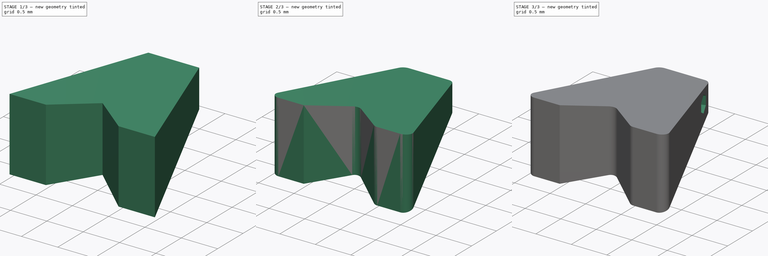
[diagram: build sequence overview — one tinted view per stage of 3, left to right]
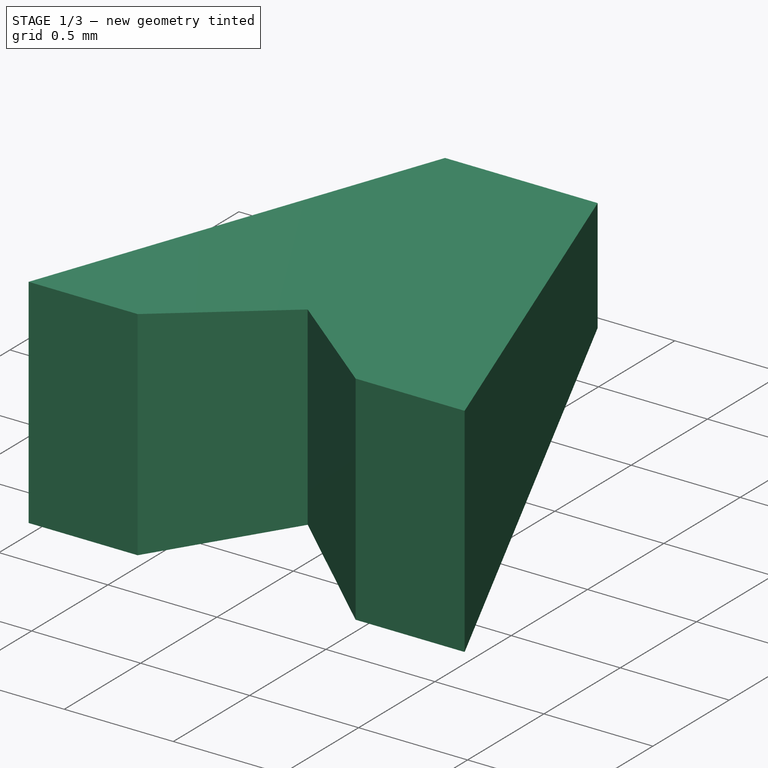
[diagram: stage 1 of 3 — iso view after this stage's code; geometry added in this stage tinted green]
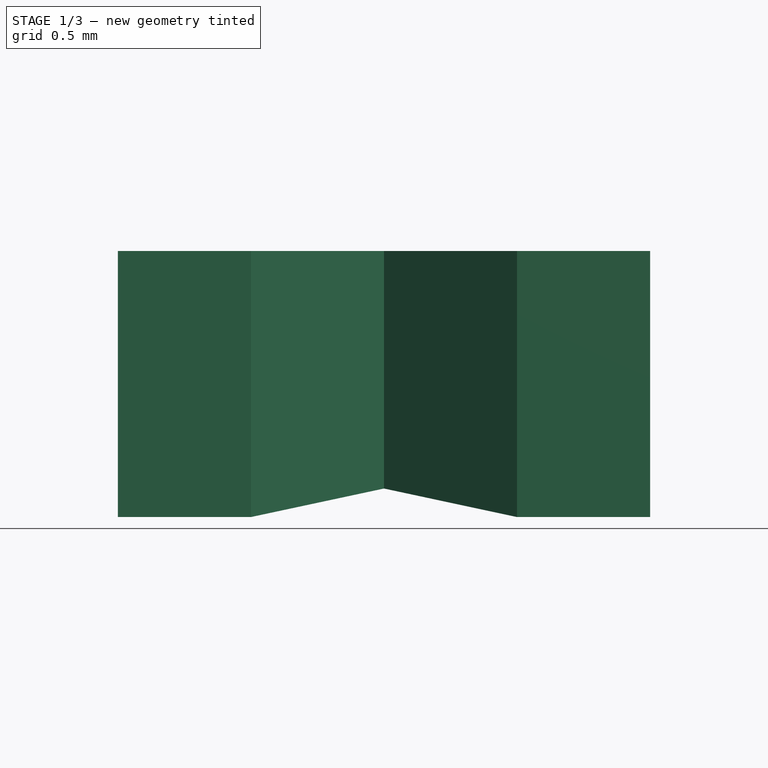
[diagram: stage 1 of 3 — front view after this stage's code; geometry added in this stage tinted green]
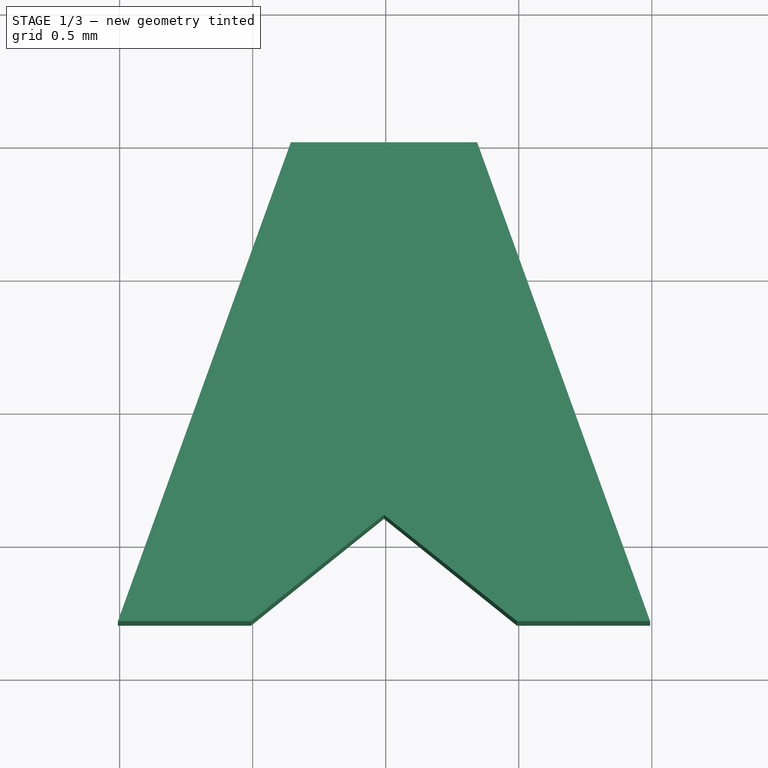
[diagram: stage 1 of 3 — top view after this stage's code; geometry added in this stage tinted green]
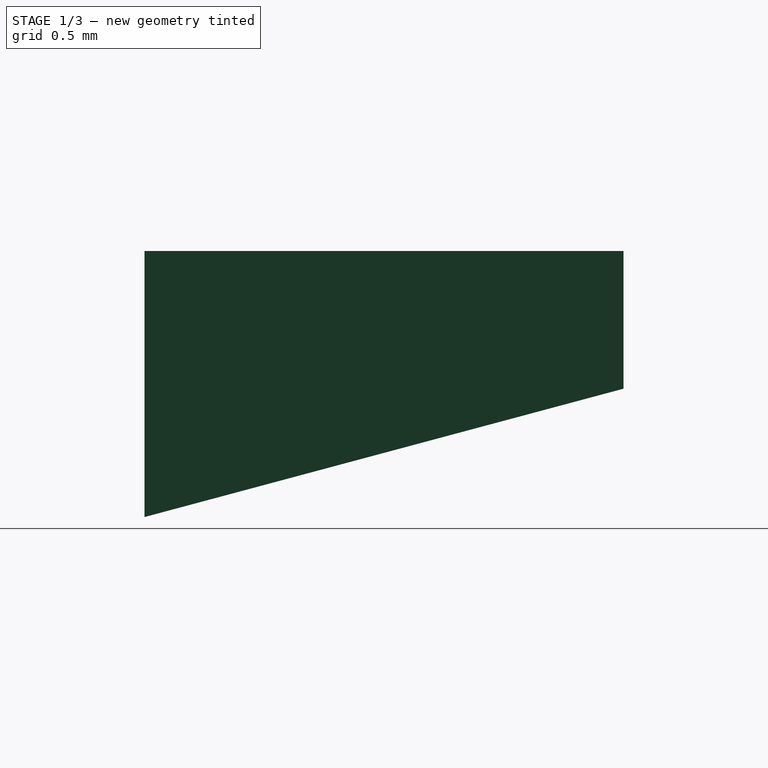
[diagram: stage 1 of 3 — right view after this stage's code; geometry added in this stage tinted green]
FCSTD DOCUMENT  (FreeCAD 0.15R4671 (Git))
Label: body_kid
License: All rights reserved
LicenseURL: http://en.wikipedia.org/wiki/All_rights_reserved
objects: Sketcher::SketchObject×4, PartDesign::Pocket×3, PartDesign::Draft×2, PartDesign::Pad×1, Part::Fillet×1
note: 15 computed .brp shape members not serialized (recipe doc carries the construction recipe); baked Part::Feature solids carry a one-line shape summary decoded from their .brp

FEATURE [Sketcher::SketchObject] Sketch001  label="body_sketch"
  Placement = pos=(-0.00651598,2.00404,0.675175) rot=(0,0,1;0rad)
  sketch-geometry (11):
    g0: GeomPoint [constr] X=0 Y=0 Z=0
    g1: GeomPoint [constr] X=-0.35 Y=0 Z=0
    g2: GeomPoint [constr] X=0.35 Y=0 Z=0
    g3: LineSegment StartX=-0.35 StartY=0 StartZ=0 EndX=-1 EndY=-1.8 EndZ=0
    g4: LineSegment StartX=-1 StartY=-1.8 StartZ=0 EndX=-0.5 EndY=-1.8 EndZ=0
    g5: GeomPoint [constr] X=0.5 Y=-1.8 Z=0
    g6: LineSegment StartX=0.5 StartY=-1.8 StartZ=0 EndX=1 EndY=-1.8 EndZ=0
    g7: LineSegment StartX=0.35 StartY=0 StartZ=0 EndX=1 EndY=-1.8 EndZ=0
    g8: LineSegment StartX=-0.5 StartY=-1.8 StartZ=0 EndX=0 EndY=-1.4 EndZ=0
    g9: LineSegment StartX=0.5 StartY=-1.8 StartZ=0 EndX=0 EndY=-1.4 EndZ=0
    g10: LineSegment StartX=-0.35 StartY=0 StartZ=0 EndX=0.35 EndY=0 EndZ=0
  constraints (25):
    c: DistanceX(g0) = 0
    c: DistanceY(g0) = 0
    c: Symmetric(g2,g1,g-2)
    c: Coincident(g3,g1)
    c: Coincident(g4,g3)
    c: Horizontal(g4)
    c: PointOnObject(g5,g4)
    c: Symmetric(g5,g4,g-2)
    c: Coincident(g6,g5)
    c: Horizontal(g6)
    c: Equal(g4,g6)
    c: Coincident(g7,g2)
    c: Coincident(g7,g6)
    c: Distance(g1,g2) = 0.7
    c: Distance(g2,g6) = 1.8
    c: Distance(g4) = 0.5
    c: Distance(g4,g5) = 1
    c: Coincident(g8,g4)
    c: PointOnObject(g8,g-2)
    c: Coincident(g9,g5)
    c: Coincident(g9,g8)
    c: DistanceY(g1) = 0
    c: Coincident(g10,g1)
    c: Coincident(g10,g2)
    c: Distance(g8,g10) = 1.4
FEATURE [PartDesign::Pad] Pad  label="body"
  Length = 1
  Length2 = 100
  Placement = pos=(-0.00651598,2.00404,0.675175) rot=(0,0,1;0rad)
  Reversed = true
  Sketch = -> Sketch001
  Type = 0
FEATURE [PartDesign::Draft] Draft  label="angle_back"
  Angle = 15
  Base = -> Pad [Face9]
  NeutralPlane = -> Pad [Face2]
  Placement = pos=(-0.00651598,2.00404,0.675175) rot=(0,0,1;0rad)
  Reversed = true
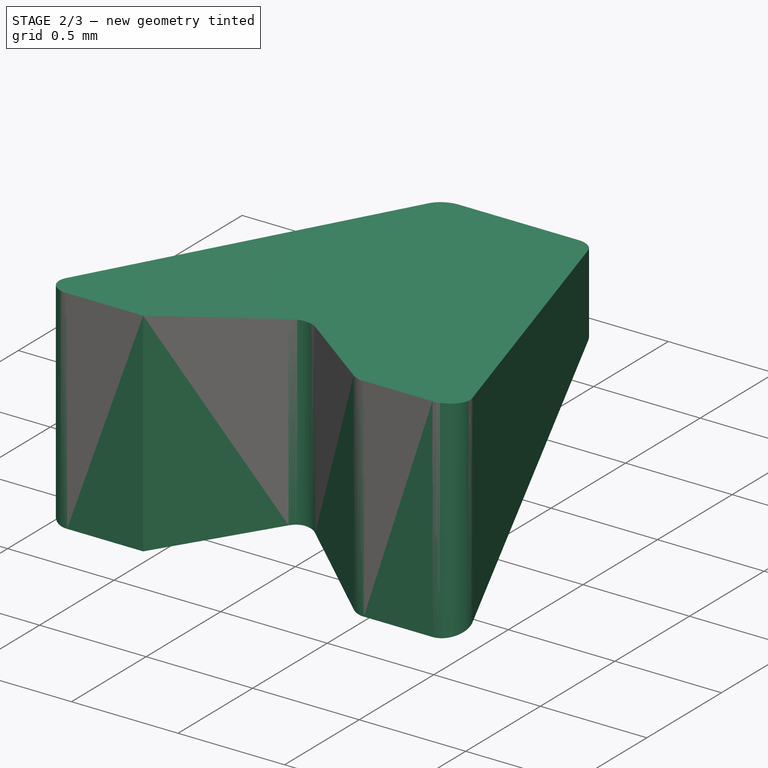
[diagram: stage 2 of 3 — iso view after this stage's code; geometry added in this stage tinted green]
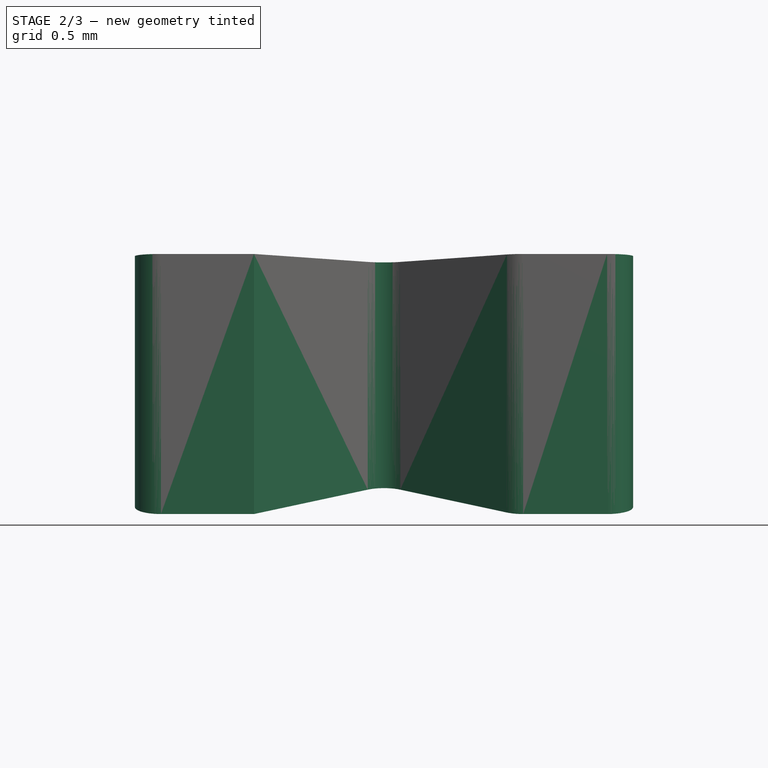
[diagram: stage 2 of 3 — front view after this stage's code; geometry added in this stage tinted green]
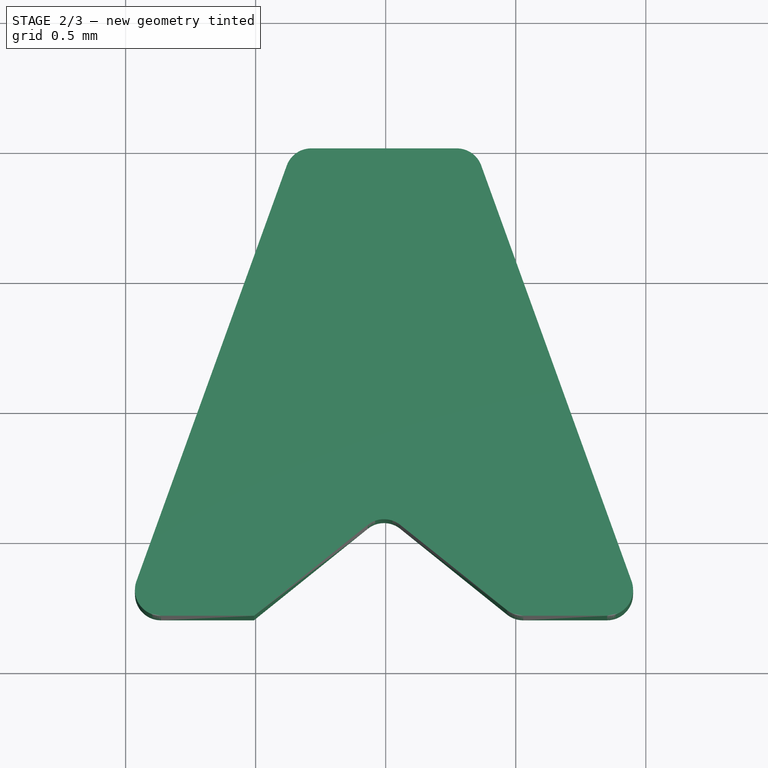
[diagram: stage 2 of 3 — top view after this stage's code; geometry added in this stage tinted green]
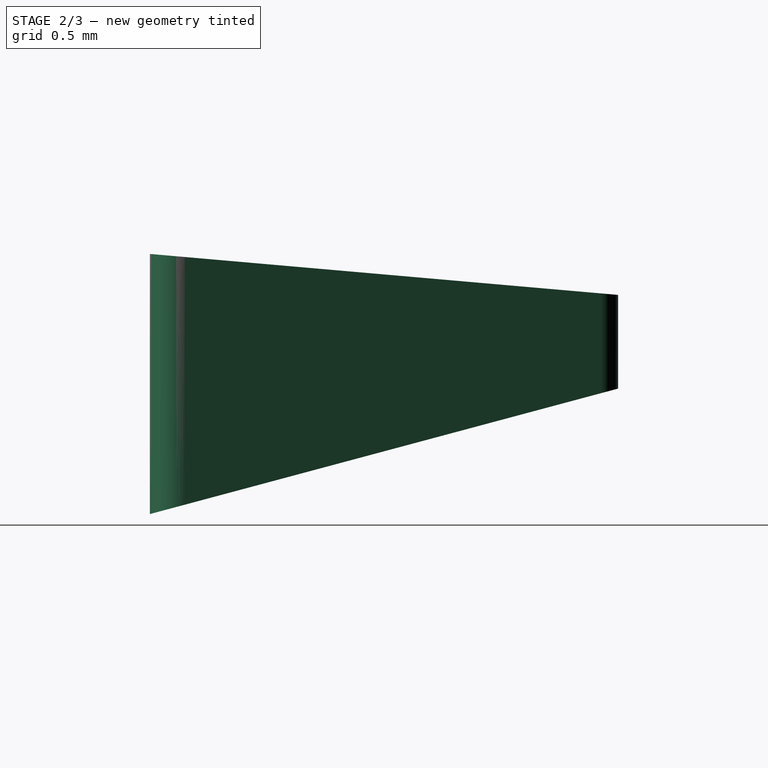
[diagram: stage 2 of 3 — right view after this stage's code; geometry added in this stage tinted green]
FEATURE [PartDesign::Draft] Draft001  label="angle_front"
  Angle = 5
  Base = -> Draft [Face8]
  NeutralPlane = -> Draft [Face2]
  Placement = pos=(-0.00651598,2.00404,0.675175) rot=(0,0,1;0rad)
  Reversed = true
FEATURE [Part::Fillet] Fillet002  label="BodyRoundKid"
  Base = -> Draft001
  Edges = 6 edges r=0.1: [Edge1,Edge2,Edge8,Edge11,Edge14,Edge17]
  Placement = pos=(0,0,-0.5) rot=(0,0,1;0rad)
FEATURE [Sketcher::SketchObject] Sketch  label="join"
  Placement = pos=(0,2.00404,-0.5) rot=(0,0.707107,0.707107;3.14159rad)
  Support = -> Fillet002 [Face6]
  sketch-geometry (7):
    g0: LineSegment StartX=0 StartY=0.47 StartZ=0 EndX=-0.103923 EndY=0.41 EndZ=0
    g1: LineSegment StartX=-0.103923 StartY=0.41 StartZ=0 EndX=-0.103923 EndY=0.29 EndZ=0
    g2: LineSegment StartX=-0.103923 StartY=0.29 StartZ=0 EndX=0 EndY=0.23 EndZ=0
    g3: LineSegment StartX=0 StartY=0.23 StartZ=0 EndX=0.103923 EndY=0.29 EndZ=0
    g4: LineSegment StartX=0.103923 StartY=0.29 StartZ=0 EndX=0.103923 EndY=0.41 EndZ=0
    g5: LineSegment StartX=0.103923 StartY=0.41 StartZ=0 EndX=0 EndY=0.47 EndZ=0
    g6: Circle [constr] CenterX=0 CenterY=0.35 CenterZ=0 NormalX=0 NormalY=0 NormalZ=1 Radius=0.12
  constraints (18):
    c: Coincident(g0,g1)
    c: Coincident(g1,g2)
    c: Coincident(g2,g3)
    c: Coincident(g3,g4)
    c: Coincident(g4,g5)
    c: Coincident(g5,g0)
    c: Equal(g0, g1-g5) x5
    c: PointOnObject(g0,g6)
    c: PointOnObject(g1,g6)
    c: PointOnObject(g2,g6)
    c: PointOnObject(g3,g6)
    c: PointOnObject(g4,g6)
    c: PointOnObject(g5,g6)
    c: Coincident(g3,g-1)
    c: Vertical(g4)
    c: Radius(g6) = 0.12
    c: DistanceY(g-1,g6) = 0.35
    c: DistanceX(g-2,g6) = 0
FEATURE [PartDesign::Pocket] Pocket
  Length = 0.2
  Placement = pos=(0,0,-0.5) rot=(0,0,1;0rad)
  Sketch = -> Sketch
  Type = 0
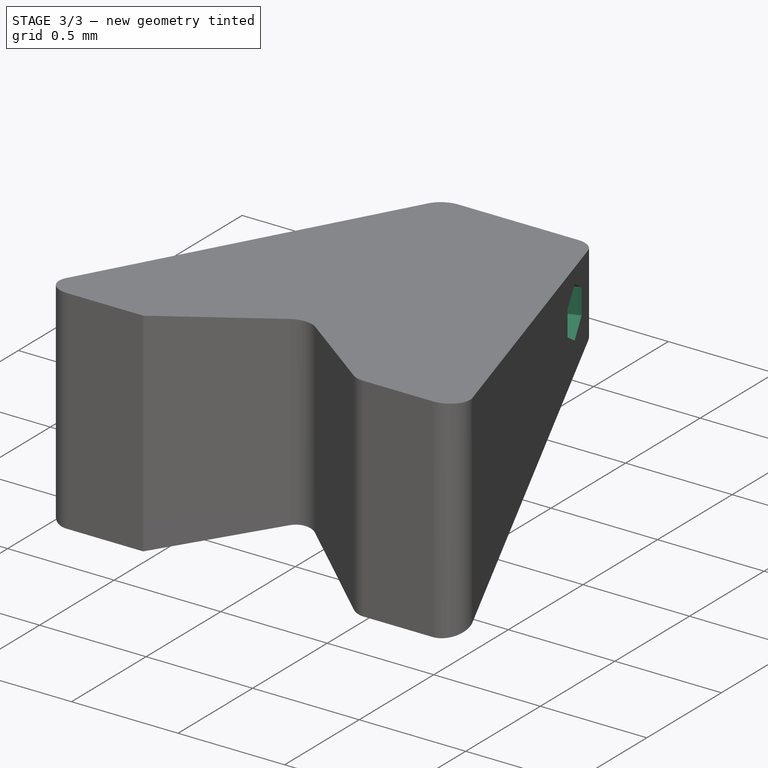
[diagram: stage 3 of 3 — iso view after this stage's code; geometry added in this stage tinted green]
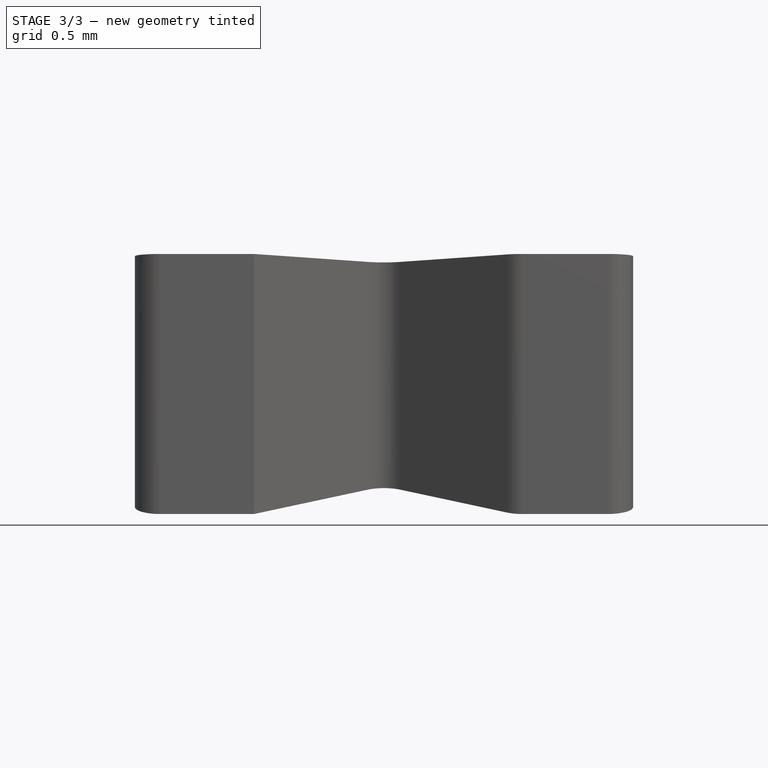
[diagram: stage 3 of 3 — front view after this stage's code; geometry added in this stage tinted green]
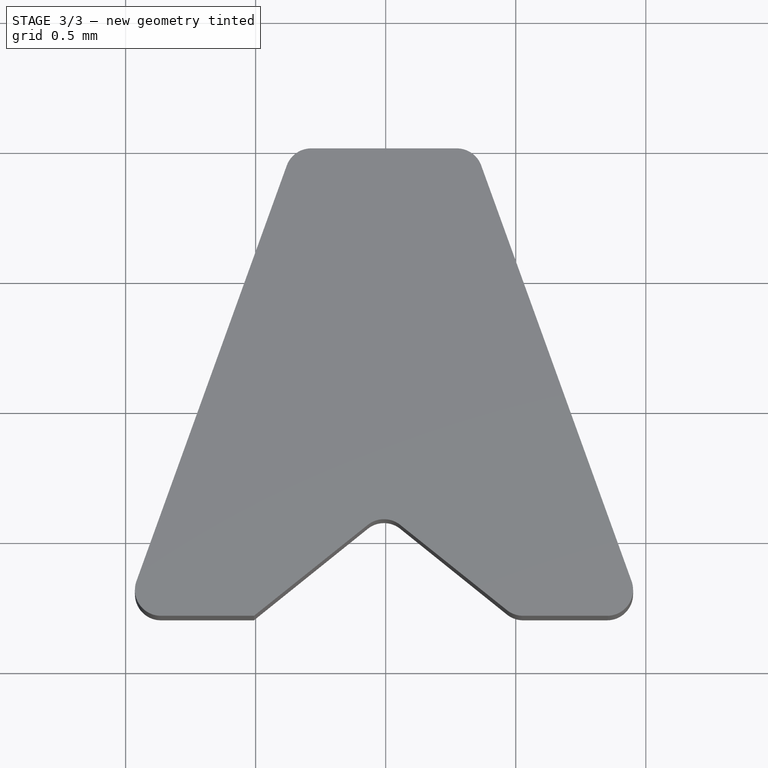
[diagram: stage 3 of 3 — top view after this stage's code; geometry added in this stage tinted green]
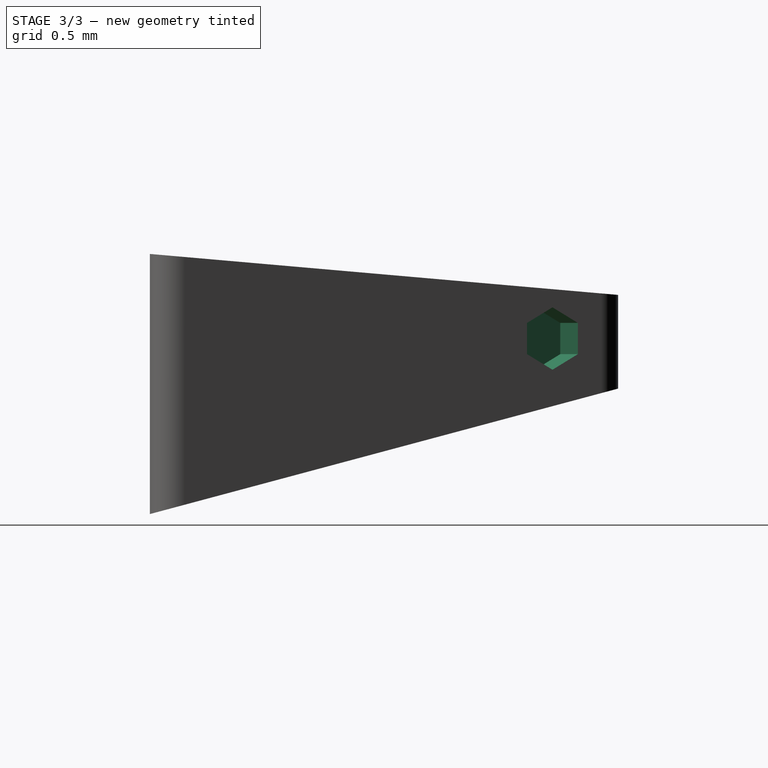
[diagram: stage 3 of 3 — right view after this stage's code; geometry added in this stage tinted green]
FEATURE [Sketcher::SketchObject] Sketch002  label="join_right"
  Placement = pos=(-0.955588,0.345073,-0.5) rot=(-0.444671,0.633351,0.633351;3.97842rad)
  Support = -> Pocket [Face1]
  sketch-geometry (7):
    g0: LineSegment StartX=-1.5 StartY=0.47 StartZ=0 EndX=-1.60392 EndY=0.41 EndZ=0
    g1: LineSegment StartX=-1.60392 StartY=0.41 StartZ=0 EndX=-1.60392 EndY=0.29 EndZ=0
    g2: LineSegment StartX=-1.60392 StartY=0.29 StartZ=0 EndX=-1.5 EndY=0.23 EndZ=0
    g3: LineSegment StartX=-1.5 StartY=0.23 StartZ=0 EndX=-1.39608 EndY=0.29 EndZ=0
    g4: LineSegment StartX=-1.39608 StartY=0.29 StartZ=0 EndX=-1.39608 EndY=0.41 EndZ=0
    g5: LineSegment StartX=-1.39608 StartY=0.41 StartZ=0 EndX=-1.5 EndY=0.47 EndZ=0
    g6: Circle [constr] CenterX=-1.5 CenterY=0.35 CenterZ=0 NormalX=0 NormalY=0 NormalZ=1 Radius=0.12
  constraints (18):
    c: Coincident(g0,g1)
    c: Coincident(g1,g2)
    c: Coincident(g2,g3)
    c: Coincident(g3,g4)
    c: Coincident(g4,g5)
    c: Coincident(g5,g0)
    c: Equal(g0, g1-g5) x5
    c: PointOnObject(g0,g6)
    c: PointOnObject(g1,g6)
    c: PointOnObject(g2,g6)
    c: PointOnObject(g3,g6)
    c: PointOnObject(g4,g6)
    c: PointOnObject(g5,g6)
    c: Coincident(g3,g-1)
    c: Vertical(g4)
    c: Radius(g6) = 0.12
    c: DistanceX(g-2,g6) = -1.5
    c: DistanceY(g-1,g6) = 0.35
FEATURE [PartDesign::Pocket] Pocket001  label="Pocket_right"
  Length = 0.2
  Placement = pos=(0,0,-0.5) rot=(0,0,1;0rad)
  Sketch = -> Sketch002
  Type = 0
FEATURE [Sketcher::SketchObject] Sketch003  label="join_left"
  Placement = pos=(0.944059,0.34091,-0.5) rot=(0.444671,0.633351,0.633351;2.30477rad)
  Support = -> Pocket001 [Face16]
  sketch-geometry (7):
    g0: LineSegment StartX=1.5 StartY=0.47 StartZ=0 EndX=1.39608 EndY=0.41 EndZ=0
    g1: LineSegment StartX=1.39608 StartY=0.41 StartZ=0 EndX=1.39608 EndY=0.29 EndZ=0
    g2: LineSegment StartX=1.39608 StartY=0.29 StartZ=0 EndX=1.5 EndY=0.23 EndZ=0
    g3: LineSegment StartX=1.5 StartY=0.23 StartZ=0 EndX=1.60392 EndY=0.29 EndZ=0
    g4: LineSegment StartX=1.60392 StartY=0.29 StartZ=0 EndX=1.60392 EndY=0.41 EndZ=0
    g5: LineSegment StartX=1.60392 StartY=0.41 StartZ=0 EndX=1.5 EndY=0.47 EndZ=0
    g6: Circle [constr] CenterX=1.5 CenterY=0.35 CenterZ=0 NormalX=0 NormalY=0 NormalZ=1 Radius=0.12
  constraints (18):
    c: Coincident(g0,g1)
    c: Coincident(g1,g2)
    c: Coincident(g2,g3)
    c: Coincident(g3,g4)
    c: Coincident(g4,g5)
    c: Coincident(g5,g0)
    c: Equal(g0, g1-g5) x5
    c: PointOnObject(g0,g6)
    c: PointOnObject(g1,g6)
    c: PointOnObject(g2,g6)
    c: PointOnObject(g3,g6)
    c: PointOnObject(g4,g6)
    c: PointOnObject(g5,g6)
    c: Coincident(g3,g-1)
    c: Vertical(g4)
    c: Radius(g6) = 0.12
    c: DistanceX(g-2,g6) = 1.5
    c: DistanceY(g-1,g6) = 0.35
FEATURE [PartDesign::Pocket] Pocket002  label="Pocket_left"
  Length = 0.2
  Placement = pos=(0,0,-0.5) rot=(0,0,1;0rad)
  Sketch = -> Sketch003
  Type = 0
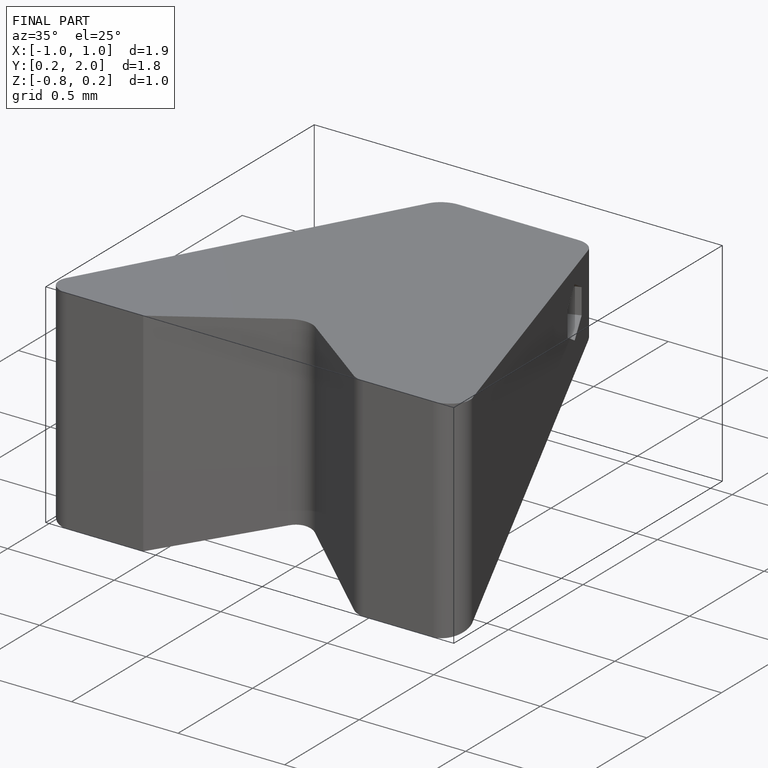
[diagram: finished part — iso view with bounding-box wireframe]
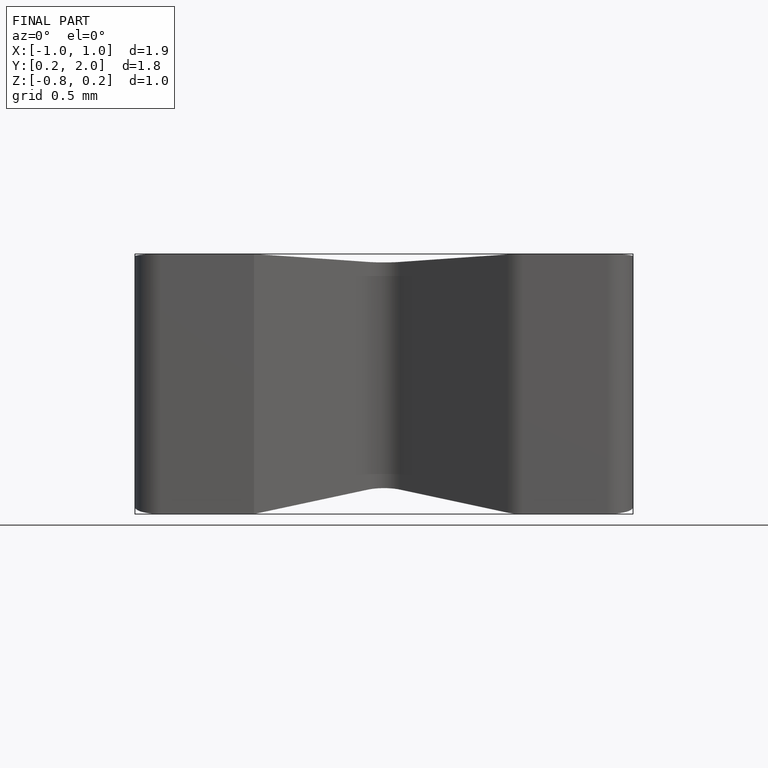
[diagram: finished part — front view with bounding-box wireframe]
